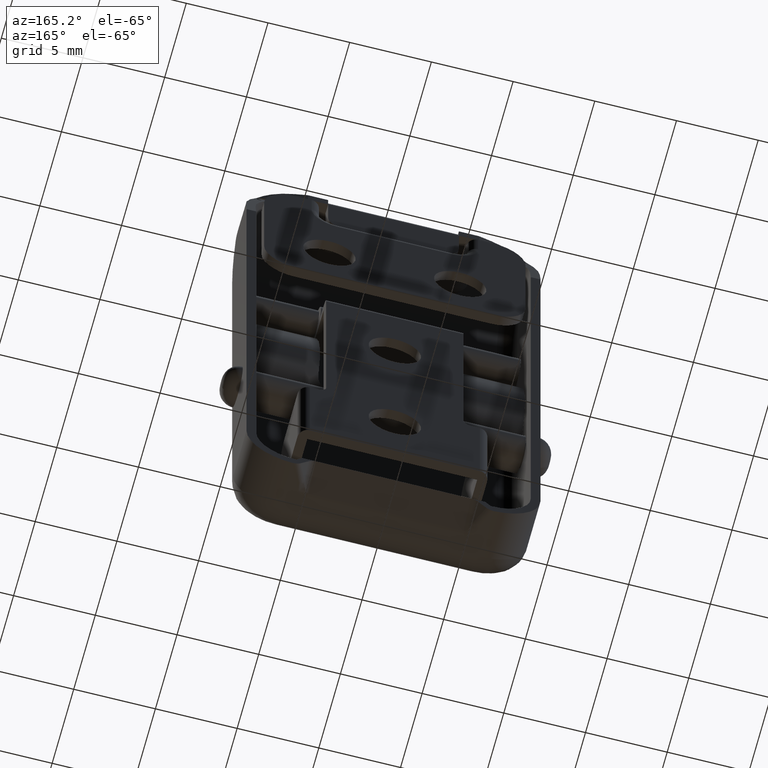
[diagram: clean part render]
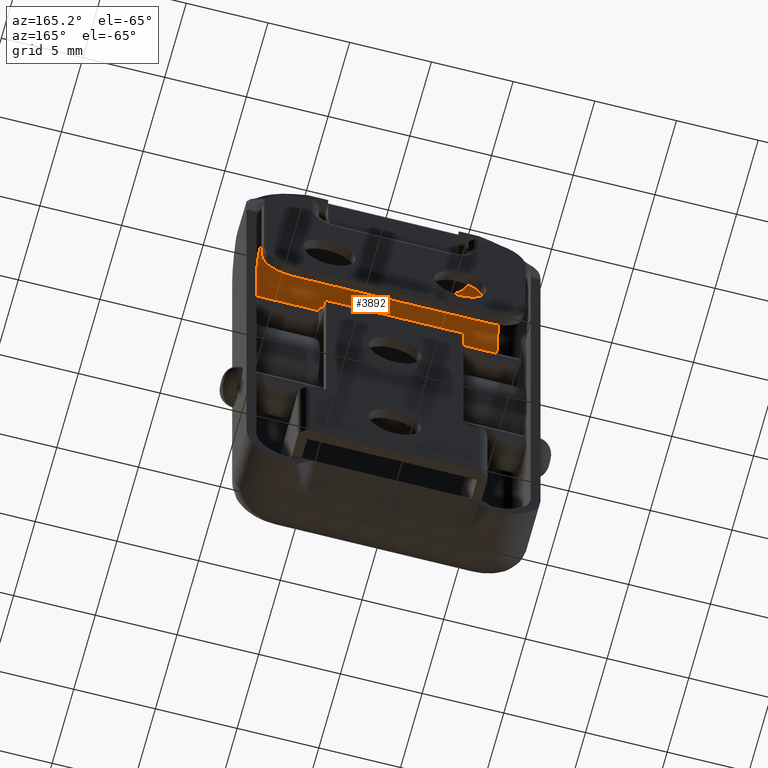
[diagram: same view with one face highlighted and labeled with its STEP entity id]
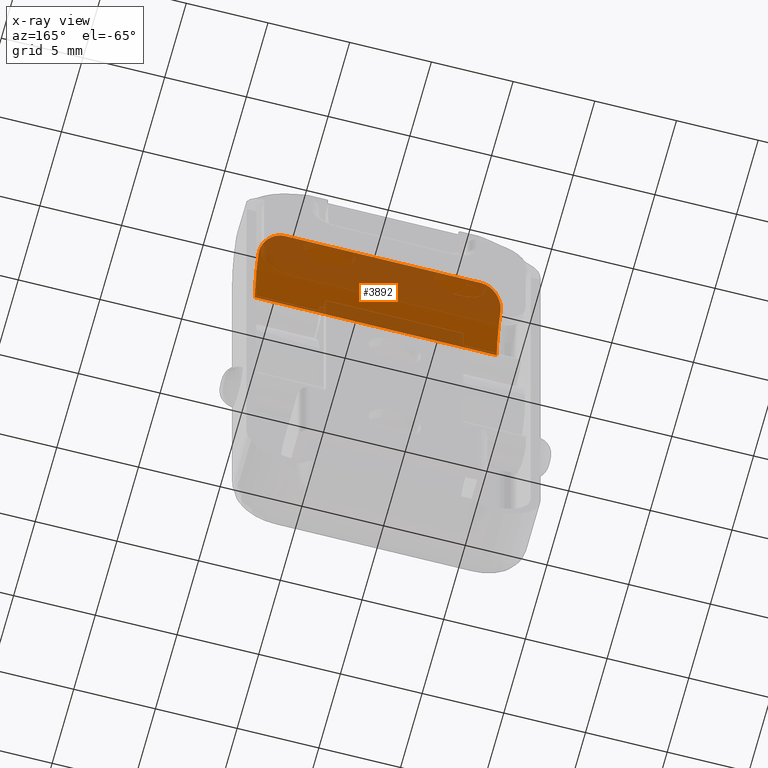
[diagram: x-ray of the same camera — body ghosted, the highlighted face saturated]
A machine part, auxiliary view. The second image highlights one B-rep face of the part: STEP entity #3892.
The next image is the same camera in x-ray: the body ghosted, the highlighted face saturated — about 62% of this face is hidden behind the body in this view.
In plain terms, the highlighted cylindrical surface (partial cylindrical patch) has radius 11.4 mm, axis along (-1, 0, 0).
Its self-contained STEP definition (entity closure, byte-faithful):
#212 = CARTESIAN_POINT ( 'NONE',  ( -6.495631959619843500, -0.2003213050700013400, 12.33071612492997100 ) ) ;
#217 = DIRECTION ( 'NONE',  ( -1.000000000000000000, 0.0000000000000000000, 0.0000000000000000000 ) ) ;
#277 = CARTESIAN_POINT ( 'NONE',  ( 6.764274732015151900, -0.2800837404732820500, 12.19507035744354300 ) ) ;
#326 = DIRECTION ( 'NONE',  ( 1.000000000000000000, -0.0000000000000000000, -0.0000000000000000000 ) ) ;
#365 = DIRECTION ( 'NONE',  ( 0.0000000000000000000, 0.0000000000000000000, 1.000000000000000000 ) ) ;
#412 = AXIS2_PLACEMENT_3D ( 'NONE', #977, #1956, #1473 ) ;
#531 = CYLINDRICAL_SURFACE ( 'NONE', #412, 11.40000000000000000 ) ;
#584 = EDGE_CURVE ( 'NONE', #767, #1814, #618, .T. ) ;
#618 = LINE ( 'NONE', #1164, #4409 ) ;
#657 = DIRECTION ( 'NONE',  ( -1.000000000000000000, -0.0000000000000000000, -0.0000000000000000000 ) ) ;
#713 = CARTESIAN_POINT ( 'NONE',  ( -6.911258796717379300, -0.3501529888826213100, 12.07305206105502300 ) ) ;
#767 = VERTEX_POINT ( 'NONE', #5124 ) ;
#782 = CARTESIAN_POINT ( 'NONE',  ( 6.404629931640260000, -0.1798434837579273000, 12.36488331965412600 ) ) ;
#977 = CARTESIAN_POINT ( 'NONE',  ( 990.9999990000000000, 9.600009252350600900, 6.506958635846860500 ) ) ;
#1077 = ORIENTED_EDGE ( 'NONE', *, *, #3435, .F. ) ;
#1164 = CARTESIAN_POINT ( 'NONE',  ( 990.9999990000000000, -0.1428192435526296200, 12.42618940507830100 ) ) ;
#1166 = CARTESIAN_POINT ( 'NONE',  ( 990.9999990000000000, -1.799990747649400100, 6.506958635846870300 ) ) ;
#1196 = CARTESIAN_POINT ( 'NONE',  ( -7.244859582636649100, -0.5915893726274387100, 11.61866210175287700 ) ) ;
#1239 = VERTEX_POINT ( 'NONE', #3547 ) ;
#1265 = CARTESIAN_POINT ( 'NONE',  ( 6.103459744022421400, -0.1428192435528146700, 12.42618940507827000 ) ) ;
#1301 = CARTESIAN_POINT ( 'NONE',  ( 7.400000999999900100, -1.799990747649400100, 6.506958635846870300 ) ) ;
#1473 = DIRECTION ( 'NONE',  ( 0.0000000000000000000, 0.0000000000000000000, 1.000000000000000000 ) ) ;
#1478 = CARTESIAN_POINT ( 'NONE',  ( -6.000001000000119200, -0.1428192435526264000, 12.42618940507830100 ) ) ;
#1505 = CIRCLE ( 'NONE', #5002, 11.40000000000000000 ) ;
#1711 = CARTESIAN_POINT ( 'NONE',  ( -7.400001000000091100, -0.8439359674159159200, 11.08149010840719300 ) ) ;
#1745 = CARTESIAN_POINT ( 'NONE',  ( 7.400000999999900100, -0.9230676707261079600, 10.89157402046275900 ) ) ;
#1748 = ORIENTED_EDGE ( 'NONE', *, *, #3533, .F. ) ;
#1814 = VERTEX_POINT ( 'NONE', #1478 ) ;
#1956 = DIRECTION ( 'NONE',  ( -1.000000000000000000, 0.0000000000000000000, 0.0000000000000000000 ) ) ;
#2059 = EDGE_LOOP ( 'NONE', ( #1748, #3575, #6163, #4024, #3245, #1077 ) ) ;
#2167 = CARTESIAN_POINT ( 'NONE',  ( -6.000001000000119200, -0.1428192435526264000, 12.42618940507830100 ) ) ;
#2214 = CARTESIAN_POINT ( 'NONE',  ( 7.400000999999899200, -0.8439464342883669100, 11.08146498791331200 ) ) ;
#2307 = AXIS2_PLACEMENT_3D ( 'NONE', #6274, #3316, #365 ) ;
#2315 = CARTESIAN_POINT ( 'NONE',  ( -7.400001000000079500, -0.9230676707261079600, 10.89157402046275900 ) ) ;
#2727 = CARTESIAN_POINT ( 'NONE',  ( 7.245136346702506300, -0.5918063450361766800, 11.61825617202731400 ) ) ;
#2824 = EDGE_CURVE ( 'NONE', #1814, #6371, #6063, .T. ) ;
#2833 = CIRCLE ( 'NONE', #2307, 11.40000000000000000 ) ;
#3158 = CARTESIAN_POINT ( 'NONE',  ( -6.399930405054829100, -0.1789632920354827800, 12.36634965160901700 ) ) ;
#3228 = CARTESIAN_POINT ( 'NONE',  ( 6.911977146275772200, -0.3504271729532926200, 12.07259966282311900 ) ) ;
#3245 = ORIENTED_EDGE ( 'NONE', *, *, #584, .F. ) ;
#3262 = CARTESIAN_POINT ( 'NONE',  ( -7.400001000000079500, 9.600009252350600900, 6.506958635846860500 ) ) ;
#3303 = FACE_OUTER_BOUND ( 'NONE', #2059, .T. ) ;
#3316 = DIRECTION ( 'NONE',  ( -1.000000000000000000, 0.0000000000000000000, 0.0000000000000000000 ) ) ;
#3435 = EDGE_CURVE ( 'NONE', #1239, #767, #5583, .T. ) ;
#3533 = EDGE_CURVE ( 'NONE', #3787, #1239, #2833, .T. ) ;
#3547 = CARTESIAN_POINT ( 'NONE',  ( 7.400000999999900100, -0.9230676707261079600, 10.89157402046275900 ) ) ;
#3575 = ORIENTED_EDGE ( 'NONE', *, *, #5858, .T. ) ;
#3591 = VECTOR ( 'NONE', #657, 1000.000000000000000 ) ;
#3662 = CARTESIAN_POINT ( 'NONE',  ( -6.759463694069052200, -0.2783250191355252600, 12.19809501852449400 ) ) ;
#3724 = CARTESIAN_POINT ( 'NONE',  ( 6.498089198842843800, -0.2008842173346019900, 12.32977585107312500 ) ) ;
#3770 = DIRECTION ( 'NONE',  ( 0.0000000000000000000, 0.0000000000000000000, 1.000000000000000000 ) ) ;
#3787 = VERTEX_POINT ( 'NONE', #1301 ) ;
#3891 = VERTEX_POINT ( 'NONE', #6387 ) ;
#3892 = ADVANCED_FACE ( 'NONE', ( #3303 ), #531, .F. ) ;
#4024 = ORIENTED_EDGE ( 'NONE', *, *, #2824, .F. ) ;
#4162 = CARTESIAN_POINT ( 'NONE',  ( -7.153411292183273300, -0.5067933137585497500, 11.78328941913730400 ) ) ;
#4231 = CARTESIAN_POINT ( 'NONE',  ( 6.207004949255282800, -0.1506344459480956600, 12.41337452113260800 ) ) ;
#4409 = VECTOR ( 'NONE', #217, 1000.000000000000000 ) ;
#4657 = CARTESIAN_POINT ( 'NONE',  ( -7.368493398601096100, -0.7608132855406547500, 11.26632321468871300 ) ) ;
#4715 = CARTESIAN_POINT ( 'NONE',  ( 6.000000999999999300, -0.1428192435526296200, 12.42618940507830100 ) ) ;
#5002 = AXIS2_PLACEMENT_3D ( 'NONE', #3262, #326, #3770 ) ;
#5119 = CARTESIAN_POINT ( 'NONE',  ( -6.103395827906184400, -0.1428192435526278700, 12.42618940507829900 ) ) ;
#5124 = CARTESIAN_POINT ( 'NONE',  ( 6.000000999999999300, -0.1428192435526296200, 12.42618940507830100 ) ) ;
#5145 = CARTESIAN_POINT ( 'NONE',  ( -7.400001000000079500, -0.9230676707261079600, 10.89157402046275900 ) ) ;
#5583 = B_SPLINE_CURVE_WITH_KNOTS ( 'NONE', 3,
 ( #1745, #2214, #5686, #2727, #6192, #3228, #277, #3724, #782, #4231, #1265, #4715 ),
 .UNSPECIFIED., .F., .F.,
 ( 4, 2, 2, 2, 2, 4 ),
 ( 0.0000000000000000000, 0.0006096728709457206100, 0.001219345741891441200, 0.001829018612837161800, 0.002133855048310022300, 0.002438691483782882500 ),
 .UNSPECIFIED. ) ;
#5686 = CARTESIAN_POINT ( 'NONE',  ( 7.368947522877536300, -0.7615976746698569500, 11.26464395167245600 ) ) ;
#5858 = EDGE_CURVE ( 'NONE', #3787, #3891, #6058, .T. ) ;
#6043 = EDGE_CURVE ( 'NONE', #6371, #3891, #1505, .T. ) ;
#6058 = LINE ( 'NONE', #1166, #3591 ) ;
#6063 = B_SPLINE_CURVE_WITH_KNOTS ( 'NONE', 3,
 ( #2167, #5119, #6119, #3158, #212, #3662, #713, #4162, #1196, #4657, #1711, #5145 ),
 .UNSPECIFIED., .F., .F.,
 ( 4, 2, 2, 2, 2, 4 ),
 ( 0.0000000000000000000, 0.0003044355831534760600, 0.0006088711663069521300, 0.001217742332613906400, 0.001826613498920860700, 0.002435484665227815500 ),
 .UNSPECIFIED. ) ;
#6119 = CARTESIAN_POINT ( 'NONE',  ( -6.203956487828923700, -0.1503769699105143900, 12.41379667461106400 ) ) ;
#6163 = ORIENTED_EDGE ( 'NONE', *, *, #6043, .F. ) ;
#6192 = CARTESIAN_POINT ( 'NONE',  ( 7.155335731876927100, -0.5082307399545753500, 11.78057498074132800 ) ) ;
#6274 = CARTESIAN_POINT ( 'NONE',  ( 7.400000999999900100, 9.600009252350600900, 6.506958635846860500 ) ) ;
#6371 = VERTEX_POINT ( 'NONE', #2315 ) ;
#6387 = CARTESIAN_POINT ( 'NONE',  ( -7.400001000000079500, -1.799990747649400100, 6.506958635846860500 ) ) ;